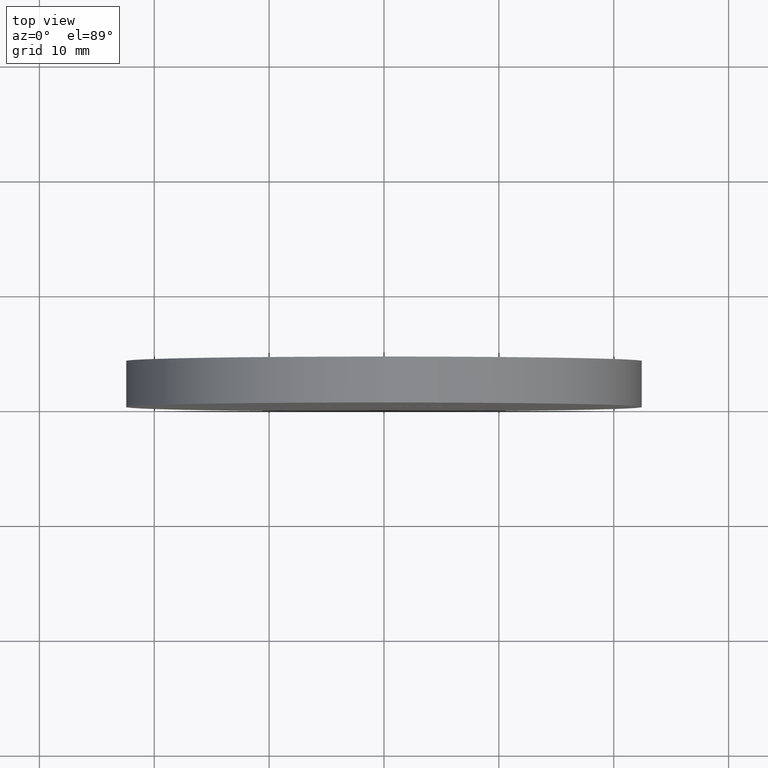
[diagram: clean part render]
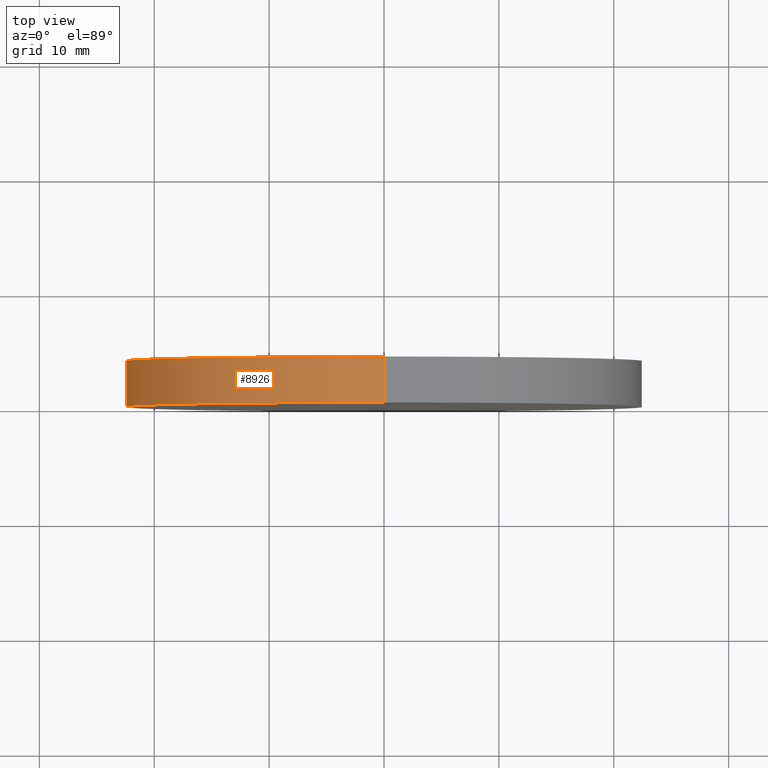
[diagram: same view with one face highlighted and labeled with its STEP entity id]
A machine part, top view. The second image highlights one B-rep face of the part: STEP entity #8926.
In plain terms, the highlighted cylindrical surface (partial cylindrical patch) has radius 22.5 mm, axis along (-0, -1, -0).
Its self-contained STEP definition (entity closure, byte-faithful):
#147 = LINE ( 'NONE', #8034, #4859 ) ;
#191 = VERTEX_POINT ( 'NONE', #7905 ) ;
#1346 = CIRCLE ( 'NONE', #11226, 22.50000000000000400 ) ;
#1533 = AXIS2_PLACEMENT_3D ( 'NONE', #11368, #6704, #7823 ) ;
#1853 = VERTEX_POINT ( 'NONE', #6252 ) ;
#1952 = VERTEX_POINT ( 'NONE', #11151 ) ;
#2053 = EDGE_CURVE ( 'NONE', #1952, #1853, #4363, .T. ) ;
#3031 = DIRECTION ( 'NONE',  ( 0.0000000000000000000, 0.0000000000000000000, 1.000000000000000000 ) ) ;
#3241 = EDGE_CURVE ( 'NONE', #9055, #191, #1346, .T. ) ;
#4139 = CARTESIAN_POINT ( 'NONE',  ( 0.0000000000000000000, 0.0000000000000000000, 0.0000000000000000000 ) ) ;
#4363 = CIRCLE ( 'NONE', #11308, 22.50000000000000400 ) ;
#4722 = CARTESIAN_POINT ( 'NONE',  ( 2.755455298081545200E-015, 4.000000000000000000, 22.50000000000000400 ) ) ;
#4859 = VECTOR ( 'NONE', #11751, 1000.000000000000000 ) ;
#5100 = DIRECTION ( 'NONE',  ( 0.0000000000000000000, 1.000000000000000000, 0.0000000000000000000 ) ) ;
#5168 = LINE ( 'NONE', #4722, #10459 ) ;
#5646 = EDGE_CURVE ( 'NONE', #1853, #191, #5168, .T. ) ;
#5721 = CARTESIAN_POINT ( 'NONE',  ( 0.0000000000000000000, 4.000000000000000000, 0.0000000000000000000 ) ) ;
#6252 = CARTESIAN_POINT ( 'NONE',  ( 2.755455298081545200E-015, 4.000000000000000000, 22.50000000000000400 ) ) ;
#6659 = ORIENTED_EDGE ( 'NONE', *, *, #3241, .T. ) ;
#6684 = ORIENTED_EDGE ( 'NONE', *, *, #2053, .F. ) ;
#6704 = DIRECTION ( 'NONE',  ( -0.0000000000000000000, -1.000000000000000000, -0.0000000000000000000 ) ) ;
#7010 = CYLINDRICAL_SURFACE ( 'NONE', #1533, 22.50000000000000400 ) ;
#7626 = DIRECTION ( 'NONE',  ( 0.0000000000000000000, 1.000000000000000000, 0.0000000000000000000 ) ) ;
#7823 = DIRECTION ( 'NONE',  ( 0.0000000000000000000, 0.0000000000000000000, -1.000000000000000000 ) ) ;
#7905 = CARTESIAN_POINT ( 'NONE',  ( 2.755455298081545200E-015, 0.0000000000000000000, 22.50000000000000400 ) ) ;
#8034 = CARTESIAN_POINT ( 'NONE',  ( 0.0000000000000000000, 4.000000000000000000, -22.50000000000000400 ) ) ;
#8470 = DIRECTION ( 'NONE',  ( -0.0000000000000000000, -1.000000000000000000, -0.0000000000000000000 ) ) ;
#8591 = EDGE_CURVE ( 'NONE', #1952, #9055, #147, .T. ) ;
#8926 = ADVANCED_FACE ( 'NONE', ( #11465 ), #7010, .T. ) ;
#9006 = ORIENTED_EDGE ( 'NONE', *, *, #5646, .F. ) ;
#9055 = VERTEX_POINT ( 'NONE', #11777 ) ;
#10459 = VECTOR ( 'NONE', #8470, 1000.000000000000000 ) ;
#11151 = CARTESIAN_POINT ( 'NONE',  ( 0.0000000000000000000, 4.000000000000000000, -22.50000000000000400 ) ) ;
#11226 = AXIS2_PLACEMENT_3D ( 'NONE', #4139, #5100, #11644 ) ;
#11308 = AXIS2_PLACEMENT_3D ( 'NONE', #5721, #7626, #3031 ) ;
#11368 = CARTESIAN_POINT ( 'NONE',  ( 0.0000000000000000000, 4.000000000000000000, 0.0000000000000000000 ) ) ;
#11465 = FACE_OUTER_BOUND ( 'NONE', #11946, .T. ) ;
#11644 = DIRECTION ( 'NONE',  ( 0.0000000000000000000, 0.0000000000000000000, 1.000000000000000000 ) ) ;
#11751 = DIRECTION ( 'NONE',  ( -0.0000000000000000000, -1.000000000000000000, -0.0000000000000000000 ) ) ;
#11777 = CARTESIAN_POINT ( 'NONE',  ( 0.0000000000000000000, 0.0000000000000000000, -22.50000000000000400 ) ) ;
#11782 = ORIENTED_EDGE ( 'NONE', *, *, #8591, .T. ) ;
#11946 = EDGE_LOOP ( 'NONE', ( #9006, #6684, #11782, #6659 ) ) ;